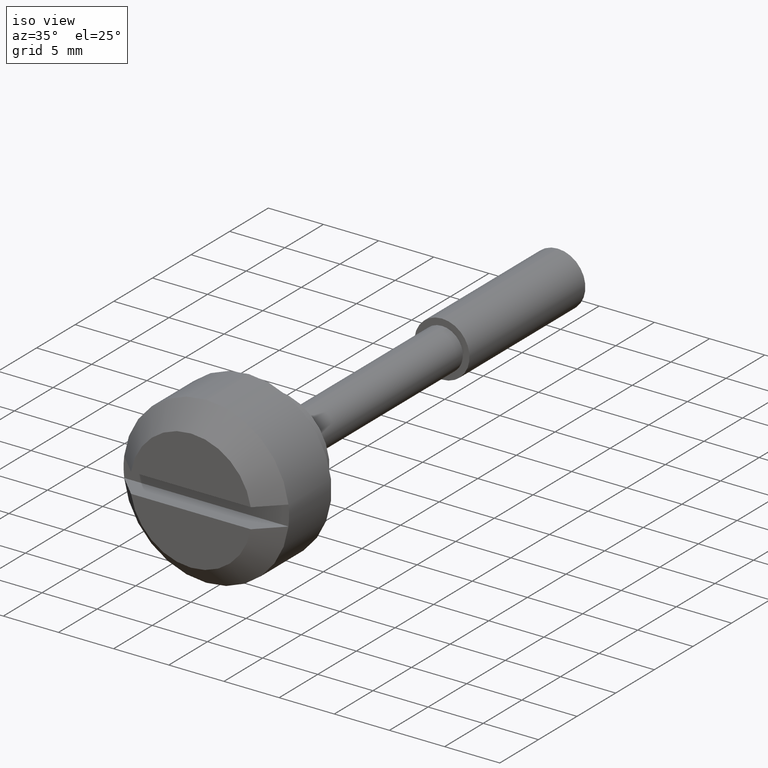
[diagram: clean part render]
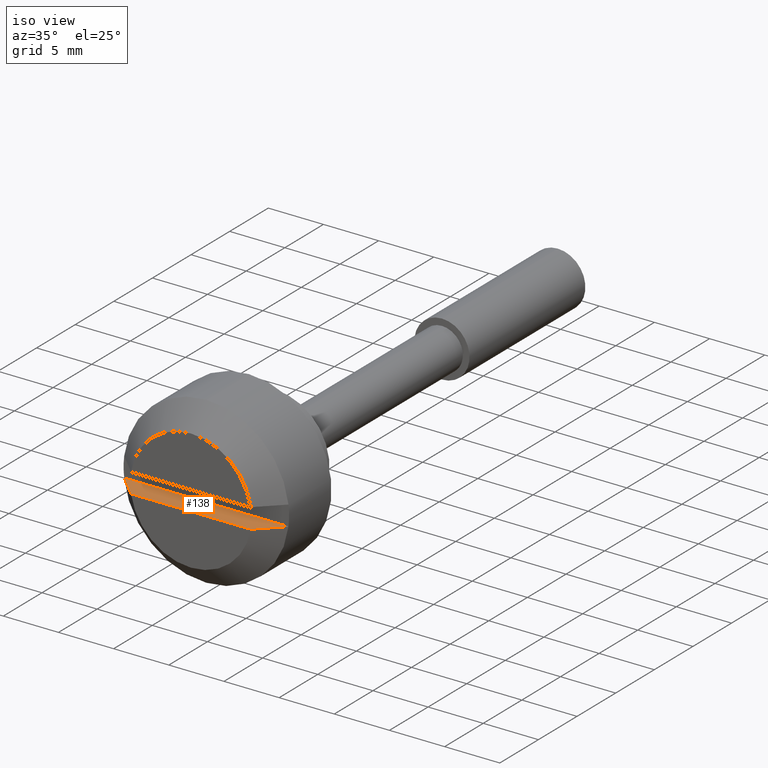
[diagram: same view with one face highlighted and labeled with its STEP entity id]
A machine part, iso view. The second image highlights one B-rep face of the part: STEP entity #138.
In plain terms, the highlighted planar face has unit normal (0, 0, 1).
Its self-contained STEP definition (entity closure, byte-faithful):
#138=ADVANCED_FACE('',(#420),#419,.T.);
#419=PLANE('',#723);
#420=FACE_OUTER_BOUND('',#724,.T.);
#720=CARTESIAN_POINT('',(-1.01999000000E+01,-8.93496502511E+00,-9.00000000000E-01));
#721=DIRECTION('',(0.00000000000E+00,0.00000000000E+00,1.00000000000E+00));
#722=DIRECTION('',(1.00000000000E+00,0.00000000000E+00,0.00000000000E+00));
#723=AXIS2_PLACEMENT_3D('',#720,#721,#722);
#724=EDGE_LOOP('',(#959,#960,#961,#962));
#959=ORIENTED_EDGE('',*,*,#1100,.F.);
#960=ORIENTED_EDGE('',*,*,#1099,.T.);
#961=ORIENTED_EDGE('',*,*,#1095,.T.);
#962=ORIENTED_EDGE('',*,*,#1098,.T.);
#1095=EDGE_CURVE('',#1582,#1583,#1590,.T.);
#1098=EDGE_CURVE('',#1583,#1604,#1611,.T.);
#1099=EDGE_CURVE('',#1596,#1582,#1617,.T.);
#1100=EDGE_CURVE('',#1596,#1604,#1623,.T.);
#1582=VERTEX_POINT('',#2060);
#1583=VERTEX_POINT('',#2061);
#1590=LINE('',#2066,#2067);
#1596=VERTEX_POINT('',#2069);
#1604=VERTEX_POINT('',#2075);
#1611=(BOUNDED_CURVE() B_SPLINE_CURVE(3,(#2080,#2081,#2082,#2083),.UNSPECIFIED.,.F.,.F.) B_SPLINE_CURVE_WITH_KNOTS((4,4),(2.99411617819E-02,3.27847412296E-02),.UNSPECIFIED.) CURVE() GEOMETRIC_REPRESENTATION_ITEM() RATIONAL_B_SPLINE_CURVE((1.00000000000E+00,1.00000000000E+00,1.00000000000E+00,1.00000000000E+00)) REPRESENTATION_ITEM('') );
#1617=(BOUNDED_CURVE() B_SPLINE_CURVE(3,(#2084,#2085,#2086,#2087),.UNSPECIFIED.,.F.,.F.) B_SPLINE_CURVE_WITH_KNOTS((4,4),(1.27287149362E-02,1.55712763781E-02),.UNSPECIFIED.) CURVE() GEOMETRIC_REPRESENTATION_ITEM() RATIONAL_B_SPLINE_CURVE((1.00000000000E+00,1.00000000000E+00,1.00000000000E+00,1.00000000000E+00)) REPRESENTATION_ITEM('') );
#1623=LINE('',#2088,#2089);
#2060=CARTESIAN_POINT('',(-9.99990000000E+00,5.42586398650E+00,-9.00000000000E-01));
#2061=CARTESIAN_POINT('',(-9.99990000000E+00,-5.42586398650E+00,-9.00000000000E-01));
#2066=CARTESIAN_POINT('',(-9.99990000000E+00,5.42586398650E+00,-9.00000000000E-01));
#2067=VECTOR('',#2068,1.08517279730E+01);
#2068=DIRECTION('',(0.00000000000E+00,-1.00000000000E+00,0.00000000000E+00));
#2069=CARTESIAN_POINT('',(-7.99990000000E+00,7.44580418759E+00,-9.00000000000E-01));
#2075=CARTESIAN_POINT('',(-7.99990000000E+00,-7.44580418759E+00,-9.00000000000E-01));
#2080=CARTESIAN_POINT('',(-9.99990000000E+00,-5.42586398650E+00,-9.00000000000E-01));
#2081=CARTESIAN_POINT('',(-9.33446199411E+00,-6.10039417036E+00,-9.00000000000E-01));
#2082=CARTESIAN_POINT('',(-8.66746487102E+00,-6.77338030878E+00,-9.00000000000E-01));
#2083=CARTESIAN_POINT('',(-7.99990000000E+00,-7.44580418759E+00,-9.00000000000E-01));
#2084=CARTESIAN_POINT('',(-7.99990000000E+00,7.44580418759E+00,-9.00000000000E-01));
#2085=CARTESIAN_POINT('',(-8.66746443278E+00,6.77338075022E+00,-9.00000000000E-01));
#2086=CARTESIAN_POINT('',(-9.33446139653E+00,6.10039477610E+00,-9.00000000000E-01));
#2087=CARTESIAN_POINT('',(-9.99990000000E+00,5.42586398650E+00,-9.00000000000E-01));
#2088=CARTESIAN_POINT('',(-7.99990000000E+00,7.44580418759E+00,-9.00000000000E-01));
#2089=VECTOR('',#2090,1.48916083752E+01);
#2090=DIRECTION('',(0.00000000000E+00,-1.00000000000E+00,0.00000000000E+00));